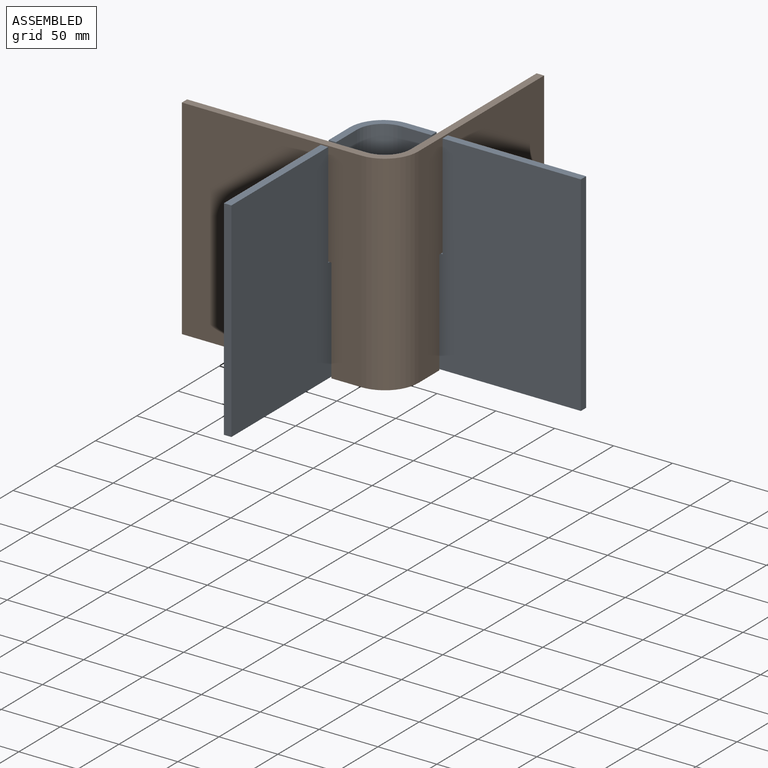
[diagram: assembled view]
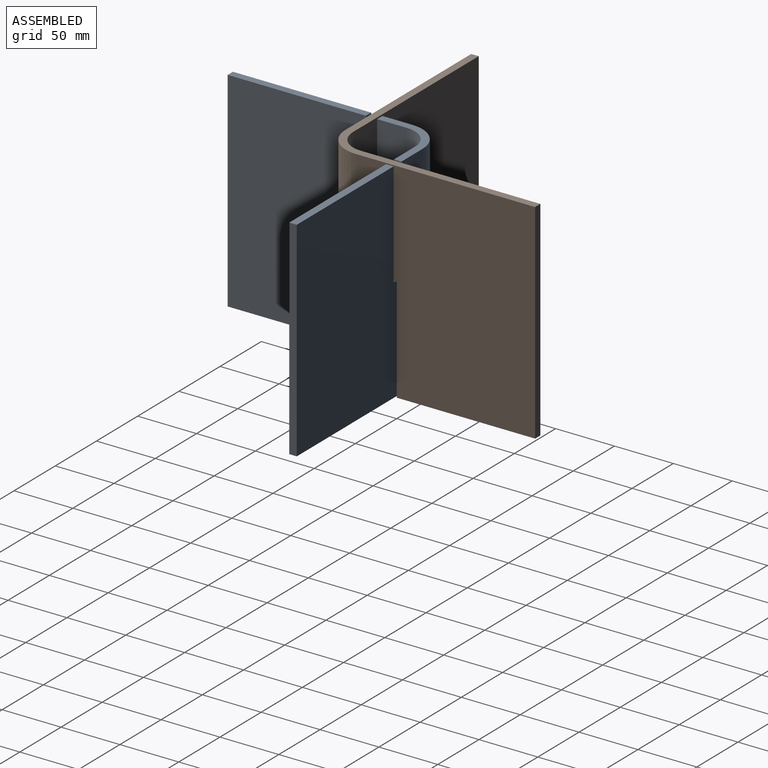
[diagram: assembled view, second angle]
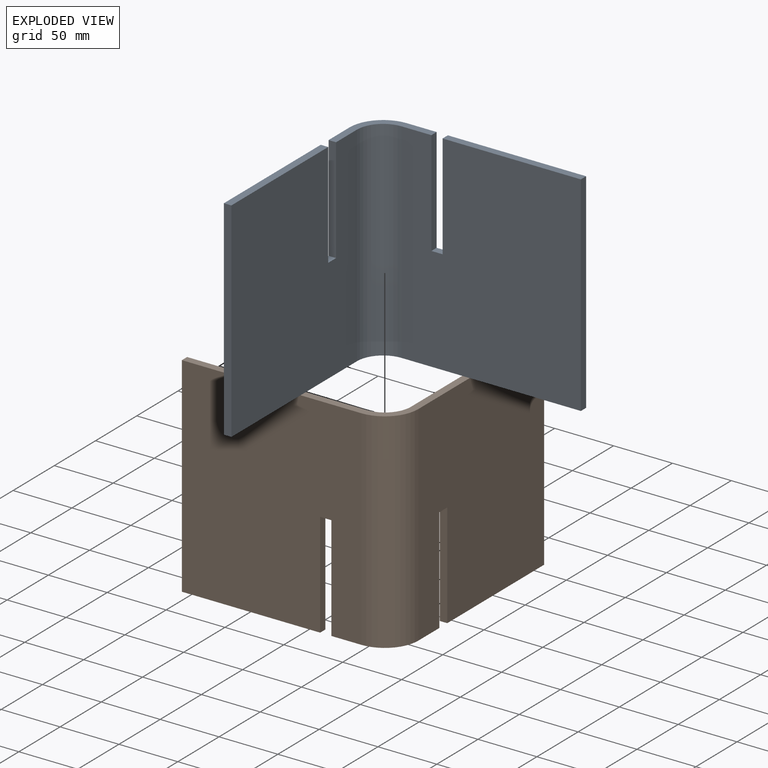
[diagram: exploded view]
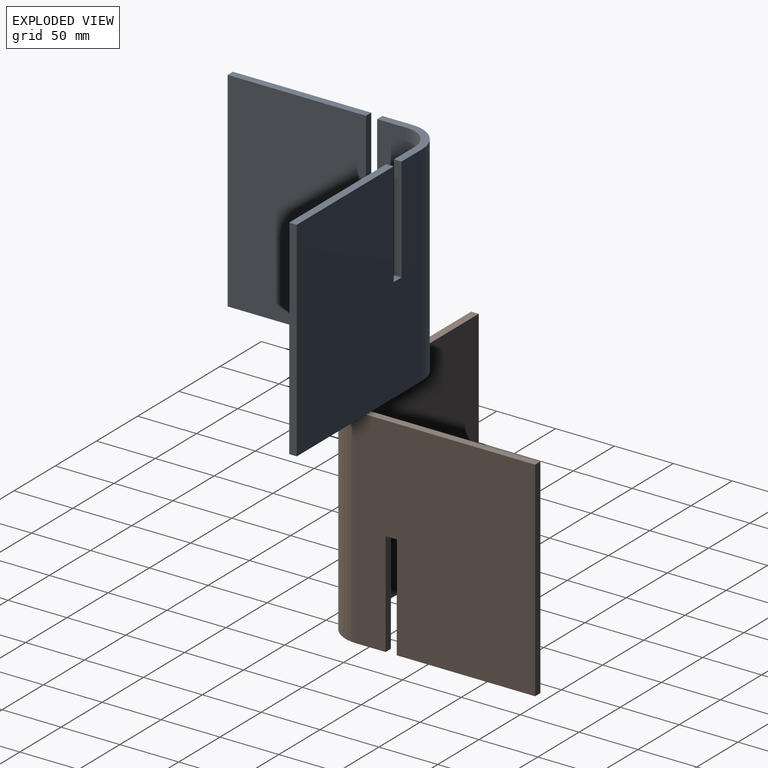
[diagram: exploded view, second angle]
ASSEMBLY  parts=2 mates=2
PART A: 18 faces, bbox 181x181x177.8 mm
  f0: plane 53.98x53.98mm, normal (0,0,1), area 575.9mm2, adj f2,f3,f4,f5,f7,f8,f12,f15
  f1: plane 117.48x6.35mm, normal (0,0,1), area 746mm2, adj f2,f6,f7,f16
  f2: plane 177.8x152.4mm, normal (-1,0,0), area 26249.9mm2, adj f0,f1,f5,f6,f10,f15,f16,f17
  f3: plane 177.8x152.4mm, normal (0,-1,0), area 26249.9mm2, adj f0,f8,f9,f10,f11,f12,f13,f14
  f4: plane 177.8x152.4mm, normal (0,1,0), area 26249.9mm2, adj f0,f5,f9,f10,f11,f12,f13,f14
  f5: cylinder r=28.57mm len=177.8mm, axis (0,0,1), area 7980.6mm2, adj f0,f2,f4,f10
  f6: plane 177.8x6.35mm, normal (0,-1,0), area 1129mm2, adj f1,f2,f7,f10
  f7: plane 177.8x152.4mm, normal (1,0,0), area 26249.9mm2, adj f0,f1,f6,f8,f10,f15,f16,f17
  f8: cylinder r=22.23mm len=177.8mm, axis (0,0,1), area 6207.2mm2, adj f0,f3,f7,f10
  f9: plane 177.8x6.35mm, normal (1,0,0), area 1129mm2, adj f3,f4,f10,f11
  f10: plane 180.98x180.98mm, normal (0,0,-1), area 2188.8mm2, adj f2,f3,f4,f5,f6,f7,f8,f9
  f11: plane 117.48x6.35mm, normal (0,0,1), area 746mm2, adj f3,f4,f9,f13
  f12: plane 88.9x6.35mm, normal (1,0,0), area 564.5mm2, adj f0,f3,f4,f14
  f13: plane 88.9x6.35mm, normal (-1,0,0), area 564.5mm2, adj f3,f4,f11,f14
  f14: plane 9.53x6.35mm, normal (0,0,1), area 60.5mm2, adj f3,f4,f12,f13
  f15: plane 88.9x6.35mm, normal (0,-1,0), area 564.5mm2, adj f0,f2,f7,f17
  f16: plane 88.9x6.35mm, normal (0,1,0), area 564.5mm2, adj f1,f2,f7,f17
  f17: plane 9.53x6.35mm, normal (0,0,1), area 60.5mm2, adj f2,f7,f15,f16
PART B: same geometry as A
PLACE A rot(axis=(0,0,1),0deg) t=(-27.39,27.39,0)mm
PLACE B rot(axis=(-0.71,-0.71,0),180deg) t=(28.17,-28.17,-177.8)mm
MATE fastened B.f14 <-> A.f14  axis (0,0,-1) through (28.17,27.39,-88.9)mm
MATE fastened A.f17 <-> B.f17  axis (0,0,1) through (-27.39,-28.17,-88.9)mm
